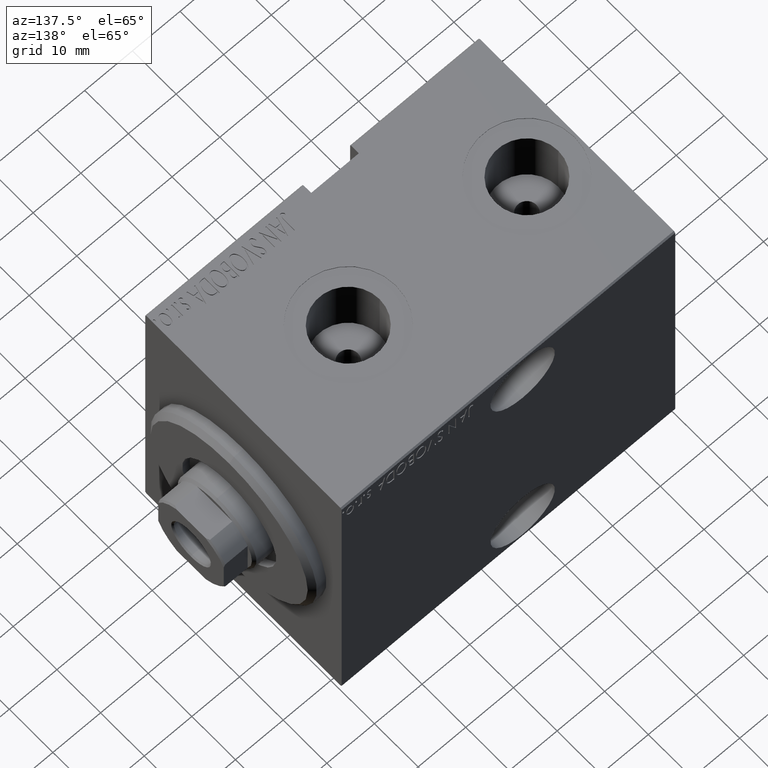
[diagram: clean part render]
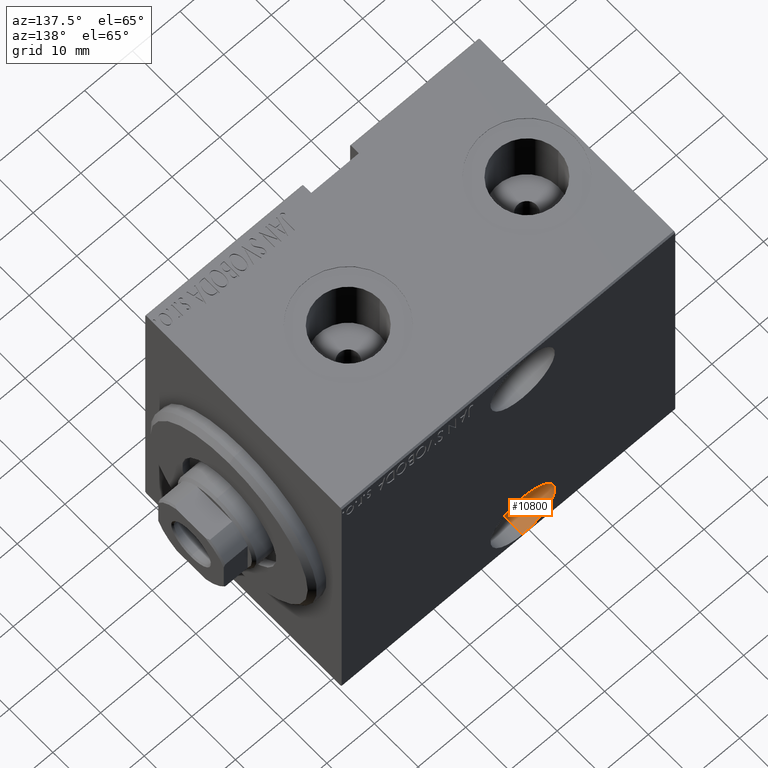
[diagram: same view with one face highlighted and labeled with its STEP entity id]
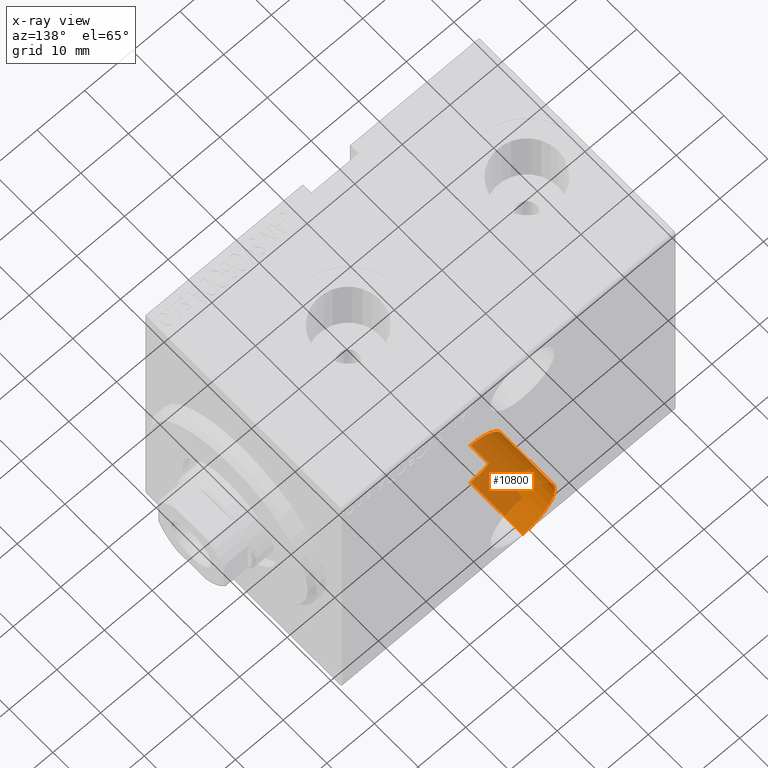
[diagram: x-ray of the same camera — body ghosted, the highlighted face saturated]
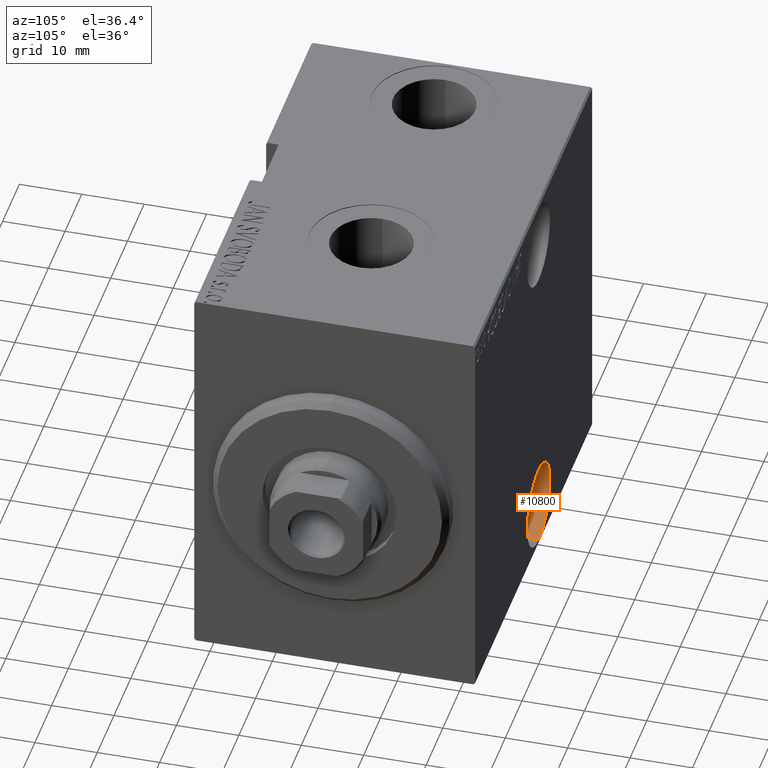
[diagram: same view with one face highlighted and labeled with its STEP entity id]
A machine part, auxiliary view. The second image highlights one B-rep face of the part: STEP entity #10800.
The next image is the same camera in x-ray: the body ghosted, the highlighted face saturated — about 59% of this face is hidden behind the body in this view.
A second angle (auxiliary view) of the same face is appended — the face is thin or edge-on in the first view.
In plain terms, the highlighted cylindrical surface (partial cylindrical patch) has radius 6.75 mm, axis along (0, 1, 0).
Its self-contained STEP definition (entity closure, byte-faithful):
#2454 = EDGE_CURVE ( 'NONE', #26917, #36590, #27925, .T. ) ;
#4677 = CARTESIAN_POINT ( 'NONE',  ( 38.00000000000001421, -10.49999999999999645, -18.25000000000000711 ) ) ;
#4987 = CARTESIAN_POINT ( 'NONE',  ( 38.00000000000001421, -22.50000000000000000, -31.75000000000000000 ) ) ;
#6007 = DIRECTION ( 'NONE',  ( 0.000000000000000000, -2.569960705150824412E-16, -1.000000000000000000 ) ) ;
#7697 = AXIS2_PLACEMENT_3D ( 'NONE', #13456, #36475, #39931 ) ;
#7748 = EDGE_CURVE ( 'NONE', #16133, #33961, #28863, .T. ) ;
#8803 = LINE ( 'NONE', #4677, #28054 ) ;
#9810 = ORIENTED_EDGE ( 'NONE', *, *, #2454, .F. ) ;
#10216 = CYLINDRICAL_SURFACE ( 'NONE', #7697, 6.750000000000002665 ) ;
#10800 = ADVANCED_FACE ( 'NONE', ( #36682 ), #10216, .F. ) ;
#11291 = EDGE_CURVE ( 'NONE', #26917, #16133, #15554, .T. ) ;
#11879 = DIRECTION ( 'NONE',  ( -0.000000000000000000, -1.000000000000000000, 1.963837897332234195E-16 ) ) ;
#13456 = CARTESIAN_POINT ( 'NONE',  ( 38.00000000000001421, -10.49999999999999822, -25.00000000000000355 ) ) ;
#14822 = ORIENTED_EDGE ( 'NONE', *, *, #23974, .F. ) ;
#15554 = LINE ( 'NONE', #41810, #40958 ) ;
#16133 = VERTEX_POINT ( 'NONE', #4987 ) ;
#17592 = CARTESIAN_POINT ( 'NONE',  ( 38.00000000000001421, -10.50000000000000000, -31.75000000000000711 ) ) ;
#18032 = CARTESIAN_POINT ( 'NONE',  ( 38.00000000000001421, -22.50000000000000000, -25.00000000000000000 ) ) ;
#18841 = EDGE_LOOP ( 'NONE', ( #14822, #9810, #41346, #19193 ) ) ;
#19193 = ORIENTED_EDGE ( 'NONE', *, *, #7748, .T. ) ;
#19244 = DIRECTION ( 'NONE',  ( 0.000000000000000000, -1.000000000000000000, 1.963837897332234442E-16 ) ) ;
#23974 = EDGE_CURVE ( 'NONE', #36590, #33961, #8803, .T. ) ;
#25208 = DIRECTION ( 'NONE',  ( 0.000000000000000000, 0.000000000000000000, -1.000000000000000000 ) ) ;
#26917 = VERTEX_POINT ( 'NONE', #17592 ) ;
#27925 = CIRCLE ( 'NONE', #30728, 6.750000000000002665 ) ;
#28054 = VECTOR ( 'NONE', #31166, 1000.000000000000000 ) ;
#28863 = CIRCLE ( 'NONE', #37136, 6.749999999999999112 ) ;
#30728 = AXIS2_PLACEMENT_3D ( 'NONE', #32479, #19244, #6007 ) ;
#31166 = DIRECTION ( 'NONE',  ( -0.000000000000000000, -1.000000000000000000, 1.963837897332234195E-16 ) ) ;
#31707 = DIRECTION ( 'NONE',  ( 0.000000000000000000, -1.000000000000000000, 1.963837897332234442E-16 ) ) ;
#32479 = CARTESIAN_POINT ( 'NONE',  ( 38.00000000000001421, -10.49999999999999822, -25.00000000000000355 ) ) ;
#33961 = VERTEX_POINT ( 'NONE', #39285 ) ;
#36475 = DIRECTION ( 'NONE',  ( -0.000000000000000000, -1.000000000000000000, 1.963837897332234195E-16 ) ) ;
#36590 = VERTEX_POINT ( 'NONE', #36609 ) ;
#36609 = CARTESIAN_POINT ( 'NONE',  ( 38.00000000000001421, -10.49999999999999645, -18.25000000000000355 ) ) ;
#36682 = FACE_OUTER_BOUND ( 'NONE', #18841, .T. ) ;
#37136 = AXIS2_PLACEMENT_3D ( 'NONE', #18032, #31707, #25208 ) ;
#39285 = CARTESIAN_POINT ( 'NONE',  ( 38.00000000000001421, -22.50000000000000000, -18.25000000000000355 ) ) ;
#39931 = DIRECTION ( 'NONE',  ( 0.000000000000000000, -2.569960705150824412E-16, -1.000000000000000000 ) ) ;
#40958 = VECTOR ( 'NONE', #11879, 1000.000000000000000 ) ;
#41346 = ORIENTED_EDGE ( 'NONE', *, *, #11291, .T. ) ;
#41810 = CARTESIAN_POINT ( 'NONE',  ( 38.00000000000001421, -10.50000000000000000, -31.75000000000000711 ) ) ;